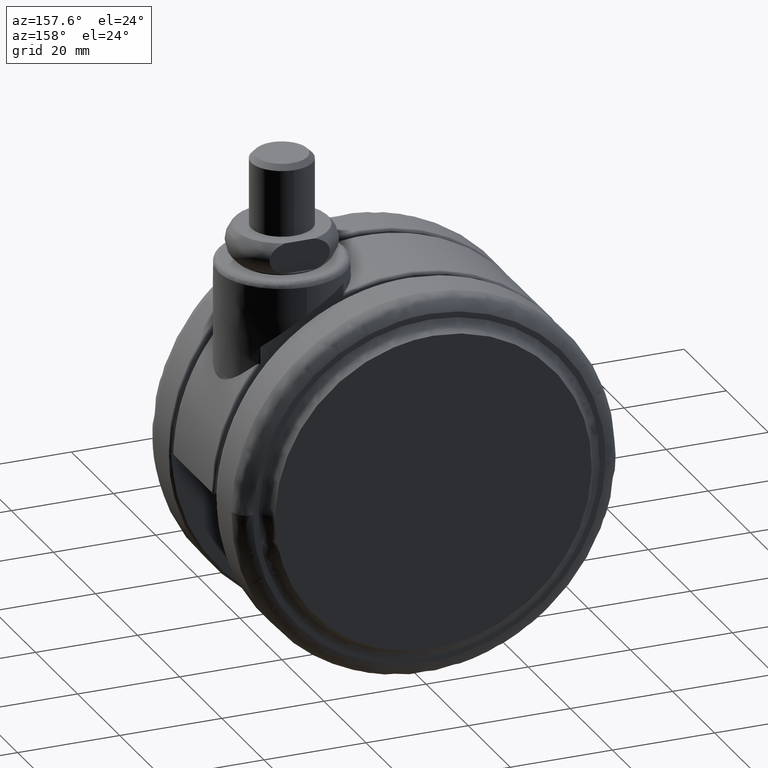
[diagram: clean part render]
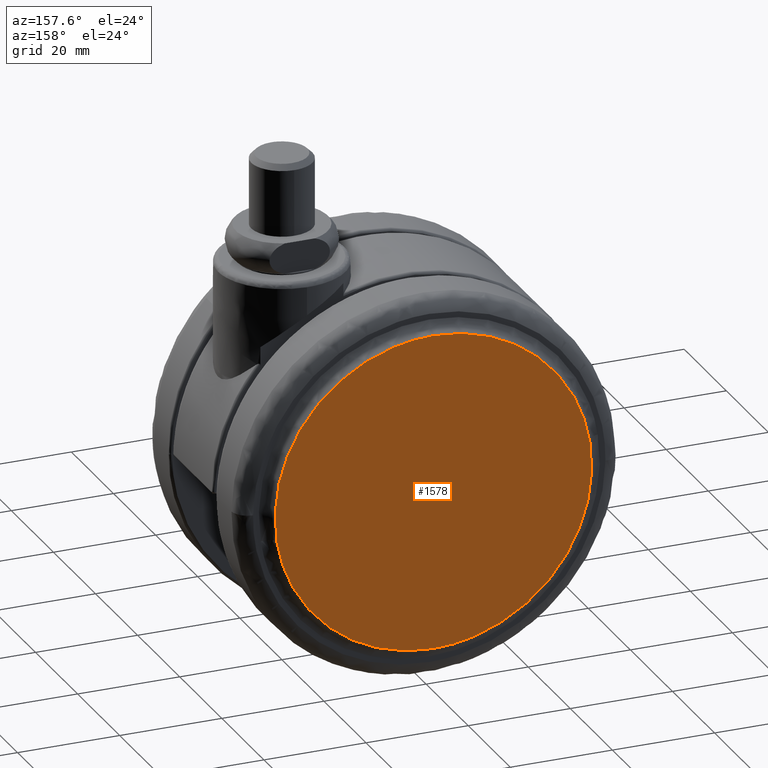
[diagram: same view with one face highlighted and labeled with its STEP entity id]
A machine part, auxiliary view. The second image highlights one B-rep face of the part: STEP entity #1578.
In plain terms, the highlighted face is a freeform B-spline surface patch.
Its self-contained STEP definition (entity closure, byte-faithful):
#1438=CARTESIAN_POINT('',(-50.648204086947374,23.499999999138350,-35.843006737228443));
#1439=VERTEX_POINT('',#1438);
#1453=CARTESIAN_POINT('',(-20.0,23.500000000000021,-71.500000000000185));
#1454=VERTEX_POINT('',#1453);
#1455=CARTESIAN_POINT('',(-50.648204086947381,23.499999999138357,-35.843006737228428));
#1456=CARTESIAN_POINT('',(-51.000000000072170,23.499999999166324,-38.158215786094836));
#1457=CARTESIAN_POINT('',(-51.000000000069363,23.499999999198870,-40.499999999989477));
#1458=CARTESIAN_POINT('',(-51.000000000032060,23.499999999629708,-71.499999999995239));
#1459=CARTESIAN_POINT('',(-20.0,23.500000000000021,-71.500000000000185));
#1467=(BOUNDED_CURVE()B_SPLINE_CURVE(2,(#1455,#1456,#1457,#1458,#1459),.UNSPECIFIED.,.F.,.U.)B_SPLINE_CURVE_WITH_KNOTS((3,2,3),(0.724102415376443,0.750000000000000,1.0),.UNSPECIFIED.)CURVE()GEOMETRIC_REPRESENTATION_ITEM()RATIONAL_B_SPLINE_CURVE((0.945604234434395,0.969659092320451,1.0,0.707106781186548,1.0))REPRESENTATION_ITEM(''));
#1468=EDGE_CURVE('',#1439,#1454,#1467,.T.);
#1470=CARTESIAN_POINT('',(10.648204086947370,23.499999999138350,-45.156993262771557));
#1471=VERTEX_POINT('',#1470);
#1472=CARTESIAN_POINT('',(-20.0,23.500000000000021,-71.500000000000185));
#1473=CARTESIAN_POINT('',(6.645385372037358,23.499999999569194,-71.500000000005755));
#1474=CARTESIAN_POINT('',(10.648204086947372,23.499999999138357,-45.156993262771564));
#1482=(BOUNDED_CURVE()B_SPLINE_CURVE(2,(#1472,#1473,#1474),.UNSPECIFIED.,.F.,.U.)B_SPLINE_CURVE_WITH_KNOTS((3,3),(0.0,0.224102415376443),.UNSPECIFIED.)CURVE()GEOMETRIC_REPRESENTATION_ITEM()RATIONAL_B_SPLINE_CURVE((1.0,0.737447688866097,0.945604234434395))REPRESENTATION_ITEM(''));
#1483=EDGE_CURVE('',#1454,#1471,#1482,.T.);
#1532=CARTESIAN_POINT('',(-20.0,23.500000000000000,-9.500000000000002));
#1533=VERTEX_POINT('',#1532);
#1534=CARTESIAN_POINT('',(10.648204086947372,23.499999999138357,-45.156993262771564));
#1535=CARTESIAN_POINT('',(11.000000000072161,23.499999999166324,-42.841784213905179));
#1536=CARTESIAN_POINT('',(11.000000000069340,23.499999999198870,-40.500000000010537));
#1537=CARTESIAN_POINT('',(11.000000000032053,23.499999999629690,-9.500000000004876));
#1538=CARTESIAN_POINT('',(-20.0,23.500000000000000,-9.500000000000002));
#1546=(BOUNDED_CURVE()B_SPLINE_CURVE(2,(#1534,#1535,#1536,#1537,#1538),.UNSPECIFIED.,.F.,.U.)B_SPLINE_CURVE_WITH_KNOTS((3,2,3),(0.224102415376443,0.250000000000000,0.500000000000000),.UNSPECIFIED.)CURVE()GEOMETRIC_REPRESENTATION_ITEM()RATIONAL_B_SPLINE_CURVE((0.945604234434395,0.969659092320451,1.0,0.707106781186548,1.0))REPRESENTATION_ITEM(''));
#1547=EDGE_CURVE('',#1471,#1533,#1546,.T.);
#1549=CARTESIAN_POINT('',(-20.0,23.500000000000000,-9.500000000000002));
#1550=CARTESIAN_POINT('',(-46.645385372037346,23.499999999569180,-9.499999999994335));
#1551=CARTESIAN_POINT('',(-50.648204086947381,23.499999999138357,-35.843006737228428));
#1559=(BOUNDED_CURVE()B_SPLINE_CURVE(2,(#1549,#1550,#1551),.UNSPECIFIED.,.F.,.U.)B_SPLINE_CURVE_WITH_KNOTS((3,3),(0.500000000000000,0.724102415376443),.UNSPECIFIED.)CURVE()GEOMETRIC_REPRESENTATION_ITEM()RATIONAL_B_SPLINE_CURVE((1.0,0.737447688866097,0.945604234434395))REPRESENTATION_ITEM(''));
#1560=EDGE_CURVE('',#1533,#1439,#1559,.T.);
#1567=CARTESIAN_POINT('',(14.089121109995141,23.500000000000000,-6.403100120168022));
#1568=CARTESIAN_POINT('',(14.089121109995141,23.500000000000000,-74.596901542801746));
#1569=CARTESIAN_POINT('',(-54.089121664191858,23.500000000000000,-6.403100120168022));
#1570=CARTESIAN_POINT('',(-54.089121664191858,23.500000000000000,-74.596901542801746));
#1571=B_SPLINE_SURFACE_WITH_KNOTS('',1,1,((#1567,#1569),(#1568,#1570)),.UNSPECIFIED.,.F.,.F.,.U.,(2,2),(2,2),(0.0,68.193801422633726),(0.0,68.178242774186998),.UNSPECIFIED.);
#1572=ORIENTED_EDGE('',*,*,#1468,.F.);
#1573=ORIENTED_EDGE('',*,*,#1560,.F.);
#1574=ORIENTED_EDGE('',*,*,#1547,.F.);
#1575=ORIENTED_EDGE('',*,*,#1483,.F.);
#1576=EDGE_LOOP('',(#1572,#1573,#1574,#1575));
#1577=FACE_OUTER_BOUND('',#1576,.T.);
#1578=ADVANCED_FACE('',(#1577),#1571,.T.);